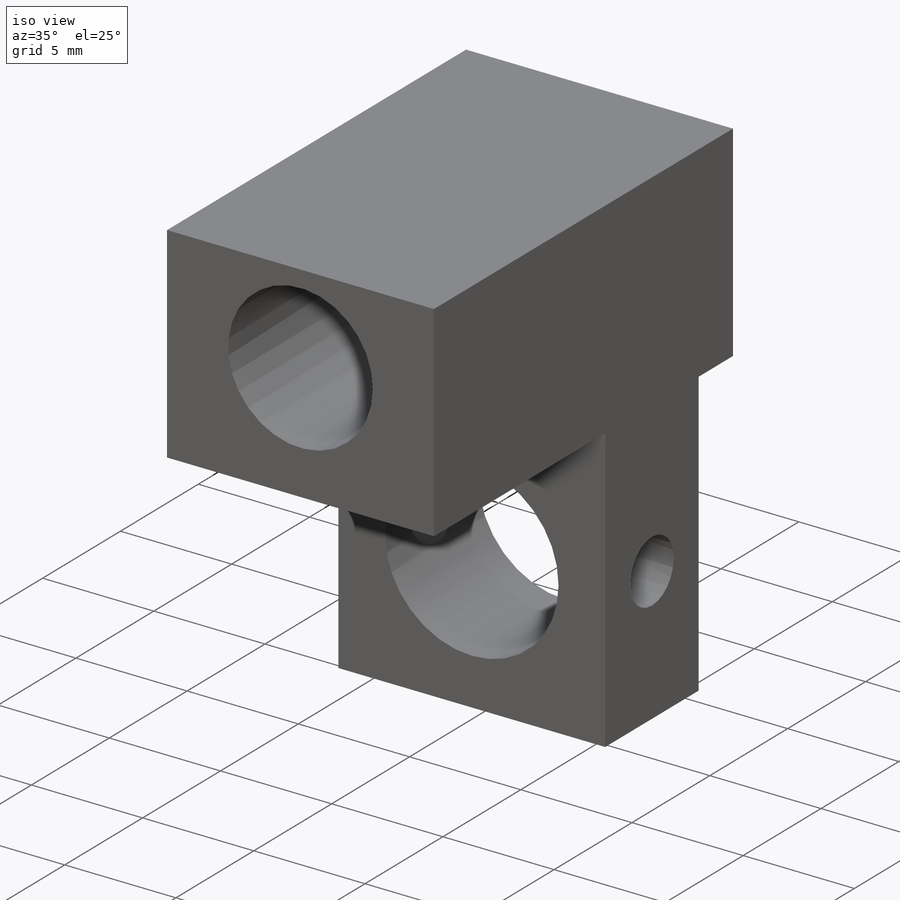
[diagram: iso view]
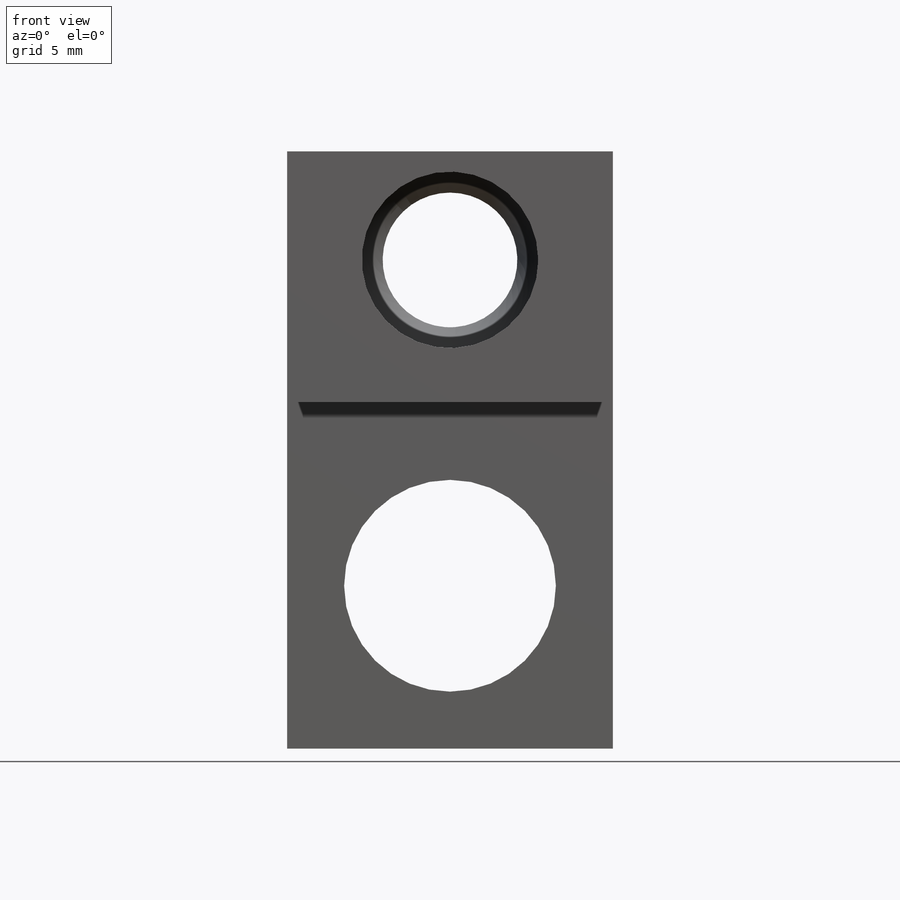
[diagram: front view]
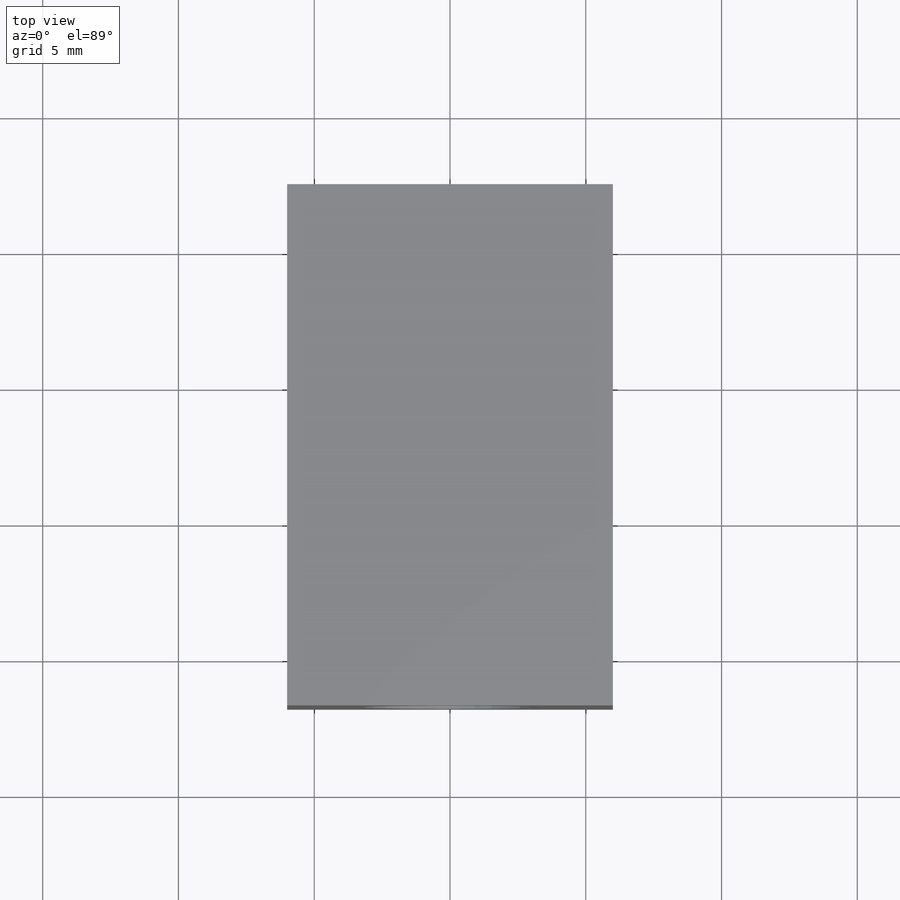
[diagram: top view]
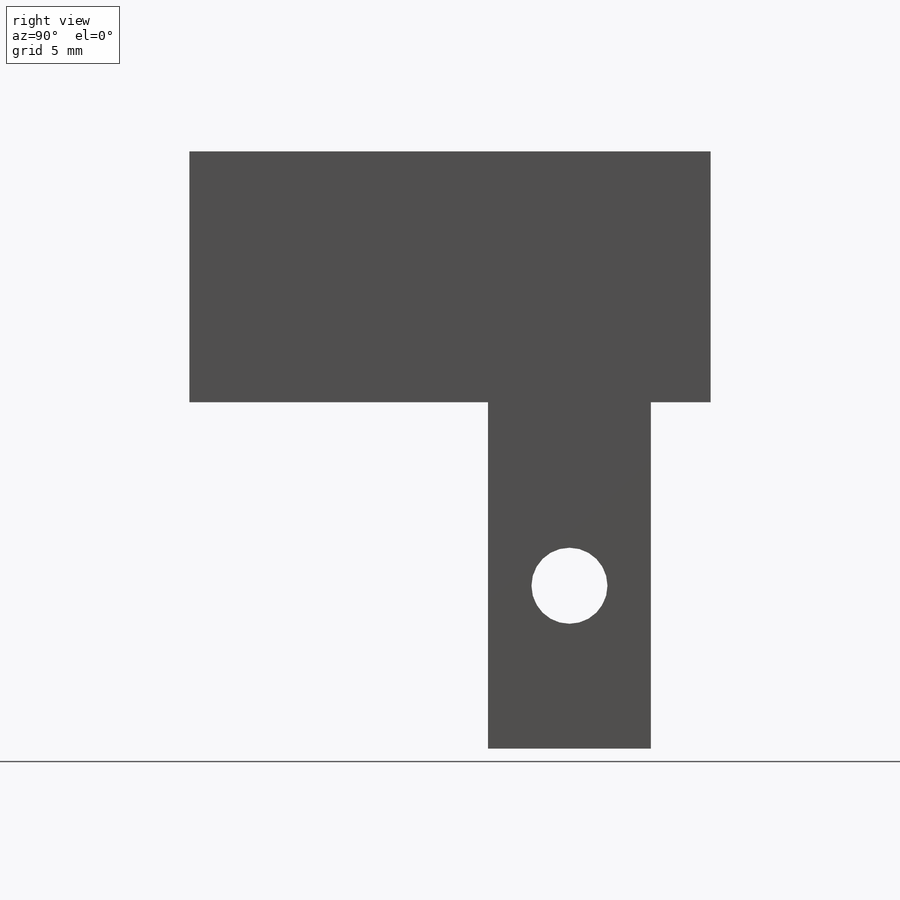
[diagram: right view]
SOLIDWORKS PART (.sldprt)
format: sldprt  version: not decoded by parser v0  size: 274,432 bytes
history: native  units: mm
features: sketch x11, cut_extrude x6, extrude x4, plane x3, material x1, revolve x1 (+10 scaffold rows collapsed)
feature tree (36):
  scaffold x10  (default folders/planes/origin — collapsed)
  material  "Matériau <non spécifié>"
  plane  "Plan de face"
  plane  "Plan de dessus"
  plane  "Plan de droite"
  sketch  "Esquisse1"  dims[D1=24.0mm D2=12.0mm]
  extrude  "Boss.-Extru.1"  Depth=6mm
  sketch  "Esquisse2"  dims[D1=3.8mm]
  sketch  "Esquisse3"  dims[D1=~2.666864mm]
  cut_extrude  "Enlèv. mat.-Extru.1"  Depth=10mm
  sketch  "Esquisse11"
  sketch  "Esquisse4"  dims[D1=~5.342285mm]
  cut_extrude  "Enlèv. mat.-Extru.2"  Depth=10mm
  sketch  "Esquisse5"  dims[D1=~1.636599mm]
  cut_extrude  "Enlèv. mat.-Extru.3"  Depth=22mm
  sketch  "Esquisse6"  dims[D1=4.0mm]
  extrude  "Boss.-Extru.4"  Depth=0.1mm
  sketch  "Esquisse7"  dims[D1=~3.535534mm]
  revolve  "Révolution1"  Angle=360deg
  sketch  "Esquisse8"  dims[D1=2.1mm]
  cut_extrude  "Enlèv. mat.-Extru.4"  Depth=19mm
  sketch  "Esquisse9"  dims[D1=3.25mm]
  cut_extrude  "Enlèv. mat.-Extru.5"  Depth=19mm
  extrude  "Boss.-Extru.5"  Depth=11mm
  extrude  "Boss.-Extru.6"  Depth=2.2mm
  sketch  "Esquisse12"  dims[D1=2.0mm]
  cut_extrude  "Enlèv. mat.-Extru.6"  Depth=13.1mm
decode coverage: 21 of 22 modeling features carry decoded parameters
note: ~ marks probable driven/reference dimensions
note: suppression state not decoded; provenance and decode notes live in map.json
